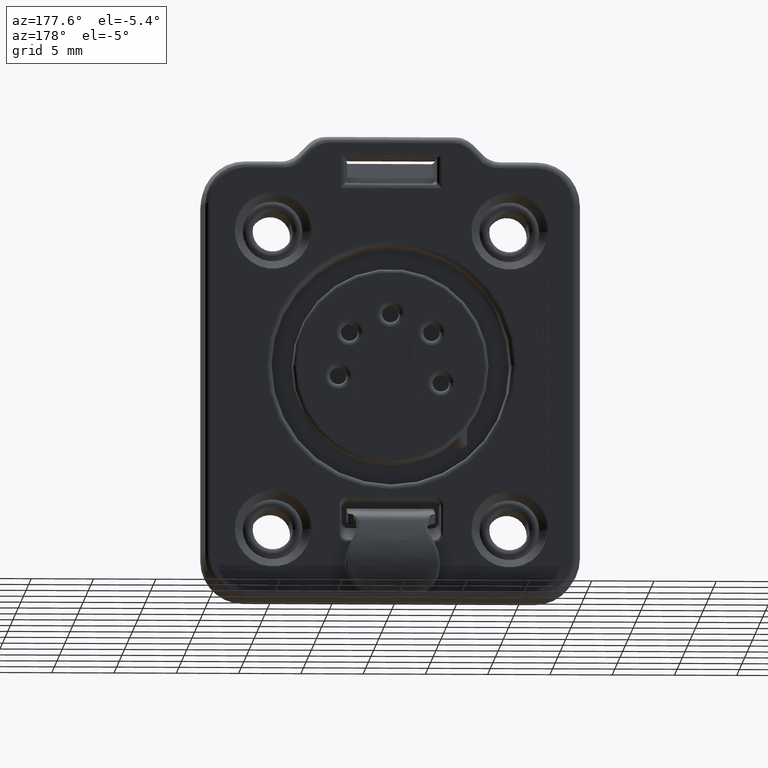
[diagram: clean part render]
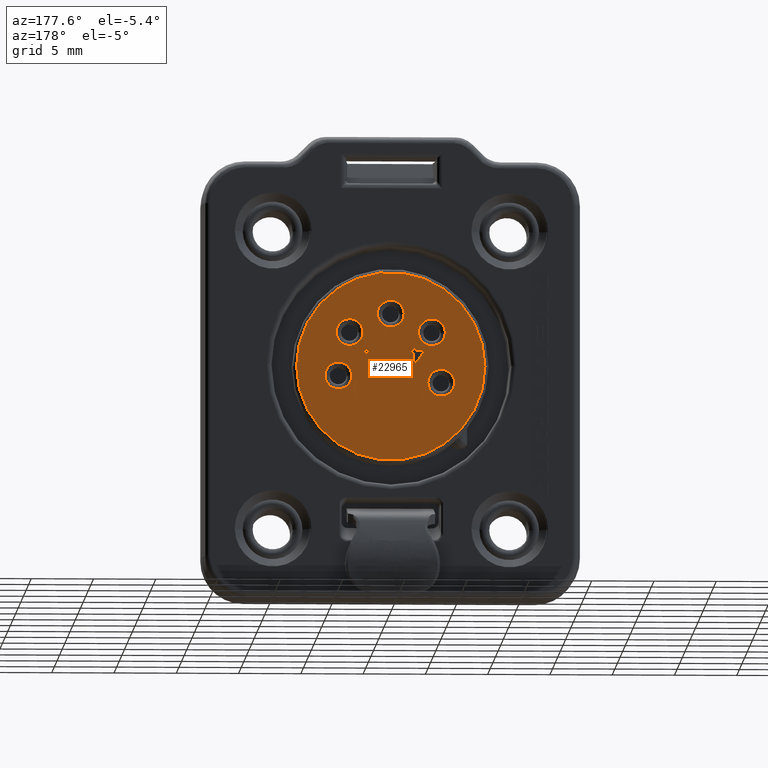
[diagram: same view with one face highlighted and labeled with its STEP entity id]
A machine part, auxiliary view. The second image highlights one B-rep face of the part: STEP entity #22965.
In plain terms, the highlighted planar face has unit normal (0, 1, 0).
Its self-contained STEP definition (entity closure, byte-faithful):
#4394=CARTESIAN_POINT('',(-4.05E0,3.E0,-1.E-1));
#4395=DIRECTION('',(0.E0,1.E0,0.E0));
#4396=DIRECTION('',(-1.E0,0.E0,0.E0));
#4397=AXIS2_PLACEMENT_3D('',#4394,#4395,#4396);
#4399=CARTESIAN_POINT('',(-4.05E0,3.E0,-1.E-1));
#4400=DIRECTION('',(0.E0,1.E0,0.E0));
#4401=DIRECTION('',(1.E0,0.E0,0.E0));
#4402=AXIS2_PLACEMENT_3D('',#4399,#4400,#4401);
#4404=CARTESIAN_POINT('',(-3.3E0,3.E0,3.95E0));
#4405=DIRECTION('',(0.E0,1.E0,0.E0));
#4406=DIRECTION('',(-1.E0,0.E0,0.E0));
#4407=AXIS2_PLACEMENT_3D('',#4404,#4405,#4406);
#4409=CARTESIAN_POINT('',(-3.3E0,3.E0,3.95E0));
#4410=DIRECTION('',(0.E0,1.E0,0.E0));
#4411=DIRECTION('',(1.E0,0.E0,0.E0));
#4412=AXIS2_PLACEMENT_3D('',#4409,#4410,#4411);
#4414=CARTESIAN_POINT('',(0.E0,3.E0,5.45E0));
#4415=DIRECTION('',(0.E0,1.E0,0.E0));
#4416=DIRECTION('',(-1.E0,0.E0,0.E0));
#4417=AXIS2_PLACEMENT_3D('',#4414,#4415,#4416);
#4419=CARTESIAN_POINT('',(0.E0,3.E0,5.45E0));
#4420=DIRECTION('',(0.E0,1.E0,0.E0));
#4421=DIRECTION('',(1.E0,0.E0,0.E0));
#4422=AXIS2_PLACEMENT_3D('',#4419,#4420,#4421);
#4424=CARTESIAN_POINT('',(3.3E0,3.E0,3.95E0));
#4425=DIRECTION('',(0.E0,1.E0,0.E0));
#4426=DIRECTION('',(-1.E0,0.E0,0.E0));
#4427=AXIS2_PLACEMENT_3D('',#4424,#4425,#4426);
#4429=CARTESIAN_POINT('',(3.3E0,3.E0,3.95E0));
#4430=DIRECTION('',(0.E0,1.E0,0.E0));
#4431=DIRECTION('',(1.E0,0.E0,0.E0));
#4432=AXIS2_PLACEMENT_3D('',#4429,#4430,#4431);
#4434=CARTESIAN_POINT('',(4.2E0,3.E0,4.5E-1));
#4435=DIRECTION('',(0.E0,1.E0,0.E0));
#4436=DIRECTION('',(-1.E0,0.E0,0.E0));
#4437=AXIS2_PLACEMENT_3D('',#4434,#4435,#4436);
#4439=CARTESIAN_POINT('',(4.2E0,3.E0,4.5E-1));
#4440=DIRECTION('',(0.E0,1.E0,0.E0));
#4441=DIRECTION('',(1.E0,0.E0,0.E0));
#4442=AXIS2_PLACEMENT_3D('',#4439,#4440,#4441);
#4444=DIRECTION('',(0.E0,0.E0,-1.E0));
#4445=VECTOR('',#4444,1.5E0);
#4446=CARTESIAN_POINT('',(2.85E0,3.E0,1.5E-1));
#4447=LINE('',#4446,#4445);
#4448=DIRECTION('',(-1.E0,0.E0,0.E0));
#4449=VECTOR('',#4448,1.5E-1);
#4450=CARTESIAN_POINT('',(2.85E0,3.E0,-1.35E0));
#4451=LINE('',#4450,#4449);
#4452=DIRECTION('',(-5.574342336867E-1,0.E0,8.302211001378E-1));
#4453=VECTOR('',#4452,2.690900395692E-1);
#4454=CARTESIAN_POINT('',(2.7E0,3.E0,-1.35E0));
#4455=LINE('',#4454,#4453);
#4456=DIRECTION('',(0.E0,0.E0,1.E0));
#4457=VECTOR('',#4456,2.553192079067E-1);
#4458=CARTESIAN_POINT('',(2.55E0,3.E0,-1.126595771313E0));
#4459=LINE('',#4458,#4457);
#4460=DIRECTION('',(5.574340799205E-1,0.E0,-8.302212033809E-1));
#4461=VECTOR('',#4460,2.690901137968E-1);
#4462=CARTESIAN_POINT('',(2.55E0,3.E0,-8.712765634060E-1));
#4463=LINE('',#4462,#4461);
#4464=DIRECTION('',(0.E0,0.E0,1.E0));
#4465=VECTOR('',#4464,1.244680881500E0);
#4466=CARTESIAN_POINT('',(2.7E0,3.E0,-1.094680881500E0));
#4467=LINE('',#4466,#4465);
#4468=DIRECTION('',(1.E0,0.E0,0.E0));
#4469=VECTOR('',#4468,1.5E-1);
#4470=CARTESIAN_POINT('',(2.7E0,3.E0,1.5E-1));
#4471=LINE('',#4470,#4469);
#4472=DIRECTION('',(0.E0,0.E0,1.E0));
#4473=VECTOR('',#4472,1.595744714141E-1);
#4474=CARTESIAN_POINT('',(1.75E0,3.E0,2.390425528586E0));
#4475=LINE('',#4474,#4473);
#4476=DIRECTION('',(1.E0,0.E0,0.E0));
#4477=VECTOR('',#4476,9.E-1);
#4478=CARTESIAN_POINT('',(1.75E0,3.E0,2.55E0));
#4479=LINE('',#4478,#4477);
#4480=DIRECTION('',(0.E0,0.E0,-1.E0));
#4481=VECTOR('',#4480,1.595744714141E-1);
#4482=CARTESIAN_POINT('',(2.65E0,3.E0,2.55E0));
#4483=LINE('',#4482,#4481);
#4484=DIRECTION('',(-1.E0,0.E0,0.E0));
#4485=VECTOR('',#4484,6.999999940395E-1);
#4486=CARTESIAN_POINT('',(2.65E0,3.E0,2.390425528586E0));
#4487=LINE('',#4486,#4485);
#4488=DIRECTION('',(6.648905181809E-1,0.E0,-7.469408268619E-1));
#4489=VECTOR('',#4488,9.400043720724E-1);
#4490=CARTESIAN_POINT('',(1.950000005960E0,3.E0,2.390425528586E0));
#4491=LINE('',#4490,#4489);
#4492=DIRECTION('',(4.629027827007E-1,0.E0,-8.864090555539E-1));
#4493=VECTOR('',#4492,1.080140921818E-1);
#4494=CARTESIAN_POINT('',(2.575E0,3.E0,1.688297885656E0));
#4495=LINE('',#4494,#4493);
#4496=DIRECTION('',(1.921826769044E-1,0.E0,-9.813591690599E-1));
#4497=VECTOR('',#4496,1.300844413286E-1);
#4498=CARTESIAN_POINT('',(2.625000023842E0,3.E0,1.592553216219E0));
#4499=LINE('',#4498,#4497);
#4500=DIRECTION('',(0.E0,0.E0,-1.E0));
#4501=VECTOR('',#4500,6.382986903191E-2);
#4502=CARTESIAN_POINT('',(2.65E0,3.E0,1.464893656969E0));
#4503=LINE('',#4502,#4501);
#4504=DIRECTION('',(-1.921826769044E-1,0.E0,-9.813591690599E-1));
#4505=VECTOR('',#4504,1.300844413286E-1);
#4506=CARTESIAN_POINT('',(2.65E0,3.E0,1.401063787937E0));
#4507=LINE('',#4506,#4505);
#4508=DIRECTION('',(-6.166622030510E-1,0.E0,-7.872278750960E-1));
#4509=VECTOR('',#4508,1.621634132738E-1);
#4510=CARTESIAN_POINT('',(2.625000023842E0,3.E0,1.273404228687E0));
#4511=LINE('',#4510,#4509);
#4512=DIRECTION('',(-8.429221804892E-1,0.E0,-5.380354984937E-1));
#4513=VECTOR('',#4512,1.186348852513E-1);
#4514=CARTESIAN_POINT('',(2.524999976158E0,3.E0,1.145744669437E0));
#4515=LINE('',#4514,#4513);
#4516=DIRECTION('',(-9.781059340346E-1,0.E0,-2.081076207309E-1));
#4517=VECTOR('',#4516,1.533576218900E-1);
#4518=CARTESIAN_POINT('',(2.425E0,3.E0,1.081914889812E0));
#4519=LINE('',#4518,#4517);
#4520=DIRECTION('',(-1.E0,0.E0,0.E0));
#4521=VECTOR('',#4520,1.000000119209E-1);
#4522=CARTESIAN_POINT('',(2.275E0,3.E0,1.05E0));
#4523=LINE('',#4522,#4521);
#4524=DIRECTION('',(-9.837740858106E-1,0.E0,1.794116721051E-1));
#4525=VECTOR('',#4524,1.778863628994E-1);
#4526=CARTESIAN_POINT('',(2.174999988079E0,3.E0,1.05E0));
#4527=LINE('',#4526,#4525);
#4528=DIRECTION('',(-8.429222241218E-1,0.E0,5.380354301360E-1));
#4529=VECTOR('',#4528,1.186349003240E-1);
#4530=CARTESIAN_POINT('',(1.999999994040E0,3.E0,1.081914889812E0));
#4531=LINE('',#4530,#4529);
#4532=DIRECTION('',(-6.166620151271E-1,0.E0,7.872280223032E-1));
#4533=VECTOR('',#4532,1.621633829502E-1);
#4534=CARTESIAN_POINT('',(1.9E0,3.E0,1.145744669437E0));
#4535=LINE('',#4534,#4533);
#4536=DIRECTION('',(-1.921828589309E-1,0.E0,9.813591334130E-1));
#4537=VECTOR('',#4536,1.300844460538E-1);
#4538=CARTESIAN_POINT('',(1.800000001490E0,3.E0,1.273404228687E0));
#4539=LINE('',#4538,#4537);
#4540=DIRECTION('',(1.E0,0.E0,0.E0));
#4541=VECTOR('',#4540,1.249999992549E-1);
#4542=CARTESIAN_POINT('',(1.775000000745E0,3.E0,1.401063787937E0));
#4543=LINE('',#4542,#4541);
#4544=DIRECTION('',(4.629026526270E-1,0.E0,-8.864091234813E-1));
#4545=VECTOR('',#4544,1.080140839045E-1);
#4546=CARTESIAN_POINT('',(1.9E0,3.E0,1.401063787937E0));
#4547=LINE('',#4546,#4545);
#4548=DIRECTION('',(7.615394278297E-1,0.E0,-6.481185847210E-1));
#4549=VECTOR('',#4548,9.848472352080E-2);
#4550=CARTESIAN_POINT('',(1.950000005960E0,3.E0,1.305319118500E0));
#4551=LINE('',#4550,#4549);
#4552=DIRECTION('',(9.689177205206E-1,0.E0,-2.473832065060E-1));
#4553=VECTOR('',#4552,1.290099286174E-1);
#4554=CARTESIAN_POINT('',(2.025000005960E0,3.E0,1.241489338875E0));
#4555=LINE('',#4554,#4553);
#4556=DIRECTION('',(1.E0,0.E0,0.E0));
#4557=VECTOR('',#4556,9.999997615814E-2);
#4558=CARTESIAN_POINT('',(2.150000011921E0,3.E0,1.209574449062E0));
#4559=LINE('',#4558,#4557);
#4560=DIRECTION('',(9.689177120382E-1,0.E0,2.473832397287E-1));
#4561=VECTOR('',#4560,1.290099112918E-1);
#4562=CARTESIAN_POINT('',(2.249999988079E0,3.E0,1.209574449062E0));
#4563=LINE('',#4562,#4561);
#4564=DIRECTION('',(7.615394278297E-1,0.E0,6.481185847210E-1));
#4565=VECTOR('',#4564,9.848472352080E-2);
#4566=CARTESIAN_POINT('',(2.374999976158E0,3.E0,1.241489338875E0));
#4567=LINE('',#4566,#4565);
#4568=DIRECTION('',(4.629027827007E-1,0.E0,8.864090555539E-1));
#4569=VECTOR('',#4568,1.080140921818E-1);
#4570=CARTESIAN_POINT('',(2.449999976158E0,3.E0,1.305319118500E0));
#4571=LINE('',#4570,#4569);
#4572=DIRECTION('',(0.E0,0.E0,1.E0));
#4573=VECTOR('',#4572,6.382986903191E-2);
#4574=CARTESIAN_POINT('',(2.5E0,3.E0,1.401063787937E0));
#4575=LINE('',#4574,#4573);
#4576=DIRECTION('',(-3.646920866794E-1,0.E0,9.311281769517E-1));
#4577=VECTOR('',#4576,1.371020257037E-1);
#4578=CARTESIAN_POINT('',(2.5E0,3.E0,1.464893656969E0));
#4579=LINE('',#4578,#4577);
#4580=DIRECTION('',(-6.594974406342E-1,0.E0,7.517068084014E-1));
#4581=VECTOR('',#4580,1.061414242161E0);
#4582=CARTESIAN_POINT('',(2.449999976158E0,3.E0,1.592553216219E0));
#4583=LINE('',#4582,#4581);
#4584=DIRECTION('',(4.629027827007E-1,0.E0,-8.864090555539E-1));
#4585=VECTOR('',#4584,1.080140921818E-1);
#4586=CARTESIAN_POINT('',(3.75E-1,3.E0,3.990425528586E0));
#4587=LINE('',#4586,#4585);
#4588=DIRECTION('',(2.526404570302E-1,0.E0,-9.675602304103E-1));
#4589=VECTOR('',#4588,9.895476145041E-2);
#4590=CARTESIAN_POINT('',(4.250000238419E-1,3.E0,3.894680859149E0));
#4591=LINE('',#4590,#4589);
#4592=DIRECTION('',(0.E0,0.E0,-1.E0));
#4593=VECTOR('',#4592,1.276595592499E-1);
#4594=CARTESIAN_POINT('',(4.5E-1,3.E0,3.798936167359E0));
#4595=LINE('',#4594,#4593);
#4596=DIRECTION('',(-1.921826120920E-1,0.E0,-9.813591817523E-1));
#4597=VECTOR('',#4596,1.300844851988E-1);
#4598=CARTESIAN_POINT('',(4.5E-1,3.E0,3.671276608109E0));
#4599=LINE('',#4598,#4597);
#4600=DIRECTION('',(-4.629027827007E-1,0.E0,-8.864090555539E-1));
#4601=VECTOR('',#4600,1.080140921818E-1);
#4602=CARTESIAN_POINT('',(4.250000238419E-1,3.E0,3.543617004156E0));
#4603=LINE('',#4602,#4601);
#4604=DIRECTION('',(-8.906053219986E-1,0.E0,-4.547770447459E-1));
#4605=VECTOR('',#4604,1.403540050281E-1);
#4606=CARTESIAN_POINT('',(3.75E-1,3.E0,3.447872334719E0));
#4607=LINE('',#4606,#4605);
#4608=DIRECTION('',(7.223082161079E-1,0.E0,-6.915712840648E-1));
#4609=VECTOR('',#4608,1.384451200383E-1);
#4610=CARTESIAN_POINT('',(2.499999761581E-1,3.E0,3.384042555094E0));
#4611=LINE('',#4610,#4609);
#4612=DIRECTION('',(4.629022624059E-1,0.E0,-8.864093272634E-1));
#4613=VECTOR('',#4612,1.080140590725E-1);
#4614=CARTESIAN_POINT('',(3.500000238419E-1,3.E0,3.288297885656E0));
#4615=LINE('',#4614,#4613);
#4616=DIRECTION('',(1.921832064360E-1,0.E0,-9.813590653599E-1));
#4617=VECTOR('',#4616,1.300844550746E-1);
#4618=CARTESIAN_POINT('',(3.999999761581E-1,3.E0,3.192553216219E0));
#4619=LINE('',#4618,#4617);
#4620=DIRECTION('',(0.E0,0.E0,-1.E0));
#4621=VECTOR('',#4620,6.382986903191E-2);
#4622=CARTESIAN_POINT('',(4.250000238419E-1,3.E0,3.064893656969E0));
#4623=LINE('',#4622,#4621);
#4624=DIRECTION('',(-1.921832064360E-1,0.E0,-9.813590653599E-1));
#4625=VECTOR('',#4624,1.300844550746E-1);
#4626=CARTESIAN_POINT('',(4.250000238419E-1,3.E0,3.001063787937E0));
#4627=LINE('',#4626,#4625);
#4628=DIRECTION('',(-6.166619297070E-1,0.E0,-7.872280892156E-1));
#4629=VECTOR('',#4628,1.621633691667E-1);
#4630=CARTESIAN_POINT('',(3.999999761581E-1,3.E0,2.873404228687E0));
#4631=LINE('',#4630,#4629);
#4632=DIRECTION('',(-8.429221804892E-1,0.E0,-5.380354984937E-1));
#4633=VECTOR('',#4632,1.186348852513E-1);
#4634=CARTESIAN_POINT('',(3.E-1,3.E0,2.745744669437E0));
#4635=LINE('',#4634,#4633);
#4636=DIRECTION('',(-9.837740890462E-1,0.E0,-1.794116543630E-1));
#4637=VECTOR('',#4636,1.778863804907E-1);
#4638=CARTESIAN_POINT('',(2.000000238419E-1,3.E0,2.681914889812E0));
#4639=LINE('',#4638,#4637);
#4640=DIRECTION('',(-1.E0,0.E0,0.E0));
#4641=VECTOR('',#4640,5.000002384186E-2);
#4642=CARTESIAN_POINT('',(2.500001192093E-2,3.E0,2.65E0));
#4643=LINE('',#4642,#4641);
#4644=DIRECTION('',(-9.837740858106E-1,0.E0,1.794116721051E-1));
#4645=VECTOR('',#4644,1.778863628994E-1);
#4646=CARTESIAN_POINT('',(-2.500001192093E-2,3.E0,2.65E0));
#4647=LINE('',#4646,#4645);
#4648=DIRECTION('',(-8.429222241218E-1,0.E0,5.380354301360E-1));
#4649=VECTOR('',#4648,1.186349003240E-1);
#4650=CARTESIAN_POINT('',(-2.000000059605E-1,3.E0,2.681914889812E0));
#4651=LINE('',#4650,#4649);
#4652=DIRECTION('',(-6.166620151271E-1,0.E0,7.872280223032E-1));
#4653=VECTOR('',#4652,1.621633829502E-1);
#4654=CARTESIAN_POINT('',(-3.E-1,3.E0,2.745744669437E0));
#4655=LINE('',#4654,#4653);
#4656=DIRECTION('',(-1.921828589309E-1,0.E0,9.813591334130E-1));
#4657=VECTOR('',#4656,1.300844460538E-1);
#4658=CARTESIAN_POINT('',(-3.999999985099E-1,3.E0,2.873404228687E0));
#4659=LINE('',#4658,#4657);
#4660=DIRECTION('',(1.E0,0.E0,0.E0));
#4661=VECTOR('',#4660,1.249999992549E-1);
#4662=CARTESIAN_POINT('',(-4.249999992549E-1,3.E0,3.001063787937E0));
#4663=LINE('',#4662,#4661);
#4664=DIRECTION('',(4.629026526270E-1,0.E0,-8.864091234813E-1));
#4665=VECTOR('',#4664,1.080140839045E-1);
#4666=CARTESIAN_POINT('',(-3.E-1,3.E0,3.001063787937E0));
#4667=LINE('',#4666,#4665);
#4668=DIRECTION('',(7.615394278297E-1,0.E0,-6.481185847210E-1));
#4669=VECTOR('',#4668,9.848472352080E-2);
#4670=CARTESIAN_POINT('',(-2.499999940395E-1,3.E0,2.905319118500E0));
#4671=LINE('',#4670,#4669);
#4672=DIRECTION('',(9.689177205206E-1,0.E0,-2.473832065060E-1));
#4673=VECTOR('',#4672,1.290099286174E-1);
#4674=CARTESIAN_POINT('',(-1.749999940395E-1,3.E0,2.841489338875E0));
#4675=LINE('',#4674,#4673);
#4676=DIRECTION('',(1.E0,0.E0,0.E0));
#4677=VECTOR('',#4676,9.999997615814E-2);
#4678=CARTESIAN_POINT('',(-4.999998807907E-2,3.E0,2.809574449062E0));
#4679=LINE('',#4678,#4677);
#4680=DIRECTION('',(9.689177120382E-1,0.E0,2.473832397287E-1));
#4681=VECTOR('',#4680,1.290099112918E-1);
#4682=CARTESIAN_POINT('',(4.999998807907E-2,3.E0,2.809574449062E0));
#4683=LINE('',#4682,#4681);
#4684=DIRECTION('',(7.615394278297E-1,0.E0,6.481185847210E-1));
#4685=VECTOR('',#4684,9.848472352080E-2);
#4686=CARTESIAN_POINT('',(1.749999761581E-1,3.E0,2.841489338875E0));
#4687=LINE('',#4686,#4685);
#4688=DIRECTION('',(4.629027827007E-1,0.E0,8.864090555539E-1));
#4689=VECTOR('',#4688,1.080140921818E-1);
#4690=CARTESIAN_POINT('',(2.499999761581E-1,3.E0,2.905319118500E0));
#4691=LINE('',#4690,#4689);
#4692=DIRECTION('',(0.E0,0.E0,1.E0));
#4693=VECTOR('',#4692,6.382986903191E-2);
#4694=CARTESIAN_POINT('',(3.E-1,3.E0,3.001063787937E0));
#4695=LINE('',#4694,#4693);
#4696=DIRECTION('',(-3.646920866794E-1,0.E0,9.311281769517E-1));
#4697=VECTOR('',#4696,1.371020257037E-1);
#4698=CARTESIAN_POINT('',(3.E-1,3.E0,3.064893656969E0));
#4699=LINE('',#4698,#4697);
#4700=DIRECTION('',(-6.166616563628E-1,0.E0,7.872283033351E-1));
#4701=VECTOR('',#4700,8.108166252982E-2);
#4702=CARTESIAN_POINT('',(2.499999761581E-1,3.E0,3.192553216219E0));
#4703=LINE('',#4702,#4701);
#4704=DIRECTION('',(-9.201546860805E-1,0.E0,3.915550455352E-1));
#4705=VECTOR('',#4704,1.630161080869E-1);
#4706=CARTESIAN_POINT('',(2.000000238419E-1,3.E0,3.256382995844E0));
#4707=LINE('',#4706,#4705);
#4708=DIRECTION('',(-1.E0,0.E0,0.E0));
#4709=VECTOR('',#4708,9.999997615814E-2);
#4710=CARTESIAN_POINT('',(4.999998807907E-2,3.E0,3.320212775469E0));
#4711=LINE('',#4710,#4709);
#4712=DIRECTION('',(0.E0,0.E0,1.E0));
#4713=VECTOR('',#4712,1.276595592499E-1);
#4714=CARTESIAN_POINT('',(-4.999998807907E-2,3.E0,3.320212775469E0));
#4715=LINE('',#4714,#4713);
#4716=DIRECTION('',(1.E0,0.E0,0.E0));
#4717=VECTOR('',#4716,9.999997615814E-2);
#4718=CARTESIAN_POINT('',(-4.999998807907E-2,3.E0,3.447872334719E0));
#4719=LINE('',#4718,#4717);
#4720=DIRECTION('',(9.781059441342E-1,0.E0,2.081075732630E-1));
#4721=VECTOR('',#4720,1.533576568697E-1);
#4722=CARTESIAN_POINT('',(4.999998807907E-2,3.E0,3.447872334719E0));
#4723=LINE('',#4722,#4721);
#4724=DIRECTION('',(7.615394278297E-1,0.E0,6.481185847210E-1));
#4725=VECTOR('',#4724,9.848472352080E-2);
#4726=CARTESIAN_POINT('',(2.000000238419E-1,3.E0,3.479787224531E0));
#4727=LINE('',#4726,#4725);
#4728=DIRECTION('',(3.646915236473E-1,0.E0,9.311283974725E-1));
#4729=VECTOR('',#4728,1.371020412436E-1);
#4730=CARTESIAN_POINT('',(2.750000238419E-1,3.E0,3.543617004156E0));
#4731=LINE('',#4730,#4729);
#4732=DIRECTION('',(0.E0,0.E0,1.E0));
#4733=VECTOR('',#4732,1.276595592499E-1);
#4734=CARTESIAN_POINT('',(3.249999761581E-1,3.E0,3.671276608109E0));
#4735=LINE('',#4734,#4733);
#4736=DIRECTION('',(-3.646916343690E-1,0.E0,9.311283541066E-1));
#4737=VECTOR('',#4736,6.855099980946E-2);
#4738=CARTESIAN_POINT('',(3.249999761581E-1,3.E0,3.798936167359E0));
#4739=LINE('',#4738,#4737);
#4740=DIRECTION('',(-6.166620692264E-1,0.E0,7.872279799254E-1));
#4741=VECTOR('',#4740,8.108172423283E-2);
#4742=CARTESIAN_POINT('',(3.E-1,3.E0,3.862765946984E0));
#4743=LINE('',#4742,#4741);
#4744=DIRECTION('',(-8.429220059588E-1,0.E0,5.380357719245E-1));
#4745=VECTOR('',#4744,5.931741248042E-2);
#4746=CARTESIAN_POINT('',(2.499999761581E-1,3.E0,3.926595748961E0));
#4747=LINE('',#4746,#4745);
#4748=DIRECTION('',(-9.689177290030E-1,0.E0,2.473831732832E-1));
#4749=VECTOR('',#4748,1.290099459430E-1);
#4750=CARTESIAN_POINT('',(2.000000238419E-1,3.E0,3.958510638773E0));
#4751=LINE('',#4750,#4749);
#4752=DIRECTION('',(-1.E0,0.E0,0.E0));
#4753=VECTOR('',#4752,1.5E-1);
#4754=CARTESIAN_POINT('',(7.5E-2,3.E0,3.990425528586E0));
#4755=LINE('',#4754,#4753);
#4756=DIRECTION('',(-9.689177205206E-1,0.E0,-2.473832065060E-1));
#4757=VECTOR('',#4756,1.290099286174E-1);
#4758=CARTESIAN_POINT('',(-7.5E-2,3.E0,3.990425528586E0));
#4759=LINE('',#4758,#4757);
#4760=DIRECTION('',(-8.429221804892E-1,0.E0,-5.380354984937E-1));
#4761=VECTOR('',#4760,5.931744262567E-2);
#4762=CARTESIAN_POINT('',(-2.000000059605E-1,3.E0,3.958510638773E0));
#4763=LINE('',#4762,#4761);
#4764=DIRECTION('',(-6.166619325544E-1,0.E0,-7.872280869852E-1));
#4765=VECTOR('',#4764,8.108171320605E-2);
#4766=CARTESIAN_POINT('',(-2.499999940395E-1,3.E0,3.926595748961E0));
#4767=LINE('',#4766,#4765);
#4768=DIRECTION('',(-3.646919736018E-1,0.E0,-9.311282212404E-1));
#4769=VECTOR('',#4768,6.855100959125E-2);
#4770=CARTESIAN_POINT('',(-3.E-1,3.E0,3.862765946984E0));
#4771=LINE('',#4770,#4769);
#4772=DIRECTION('',(-1.E0,0.E0,0.E0));
#4773=VECTOR('',#4772,1.249999970198E-1);
#4774=CARTESIAN_POINT('',(-3.250000029802E-1,3.E0,3.798936167359E0));
#4775=LINE('',#4774,#4773);
#4776=DIRECTION('',(2.526406896375E-1,0.E0,9.675601696740E-1));
#4777=VECTOR('',#4776,9.895476766206E-2);
#4778=CARTESIAN_POINT('',(-4.5E-1,3.E0,3.798936167359E0));
#4779=LINE('',#4778,#4777);
#4780=DIRECTION('',(4.629026038494E-1,0.E0,8.864091489541E-1));
#4781=VECTOR('',#4780,1.080140808005E-1);
#4782=CARTESIAN_POINT('',(-4.249999992549E-1,3.E0,3.894680859149E0));
#4783=LINE('',#4782,#4781);
#4784=DIRECTION('',(7.615393718205E-1,0.E0,6.481186505318E-1));
#4785=VECTOR('',#4784,9.848473076409E-2);
#4786=CARTESIAN_POINT('',(-3.75E-1,3.E0,3.990425528586E0));
#4787=LINE('',#4786,#4785);
#4788=DIRECTION('',(8.429221920791E-1,0.E0,5.380354803361E-1));
#4789=VECTOR('',#4788,1.186349048337E-1);
#4790=CARTESIAN_POINT('',(-3.E-1,3.E0,4.054255319387E0));
#4791=LINE('',#4790,#4789);
#4792=DIRECTION('',(9.526592087582E-1,0.E0,3.040401815027E-1));
#4793=VECTOR('',#4792,1.049693249382E-1);
#4794=CARTESIAN_POINT('',(-2.000000059605E-1,3.E0,4.118085107394E0));
#4795=LINE('',#4794,#4793);
#4796=DIRECTION('',(1.E0,0.E0,0.E0));
#4797=VECTOR('',#4796,2.000000238419E-1);
#4798=CARTESIAN_POINT('',(-1.000000119209E-1,3.E0,4.15E0));
#4799=LINE('',#4798,#4797);
#4800=DIRECTION('',(9.526592245053E-1,0.E0,-3.040401321618E-1));
#4801=VECTOR('',#4800,1.049693419731E-1);
#4802=CARTESIAN_POINT('',(1.000000119209E-1,3.E0,4.15E0));
#4803=LINE('',#4802,#4801);
#4804=DIRECTION('',(8.429221484465E-1,0.E0,-5.380355486938E-1));
#4805=VECTOR('',#4804,1.186348897611E-1);
#4806=CARTESIAN_POINT('',(2.000000238419E-1,3.E0,4.118085107394E0));
#4807=LINE('',#4806,#4805);
#4808=DIRECTION('',(7.615393718205E-1,0.E0,-6.481186505318E-1));
#4809=VECTOR('',#4808,9.848473076409E-2);
#4810=CARTESIAN_POINT('',(3.E-1,3.E0,4.054255319387E0));
#4811=LINE('',#4810,#4809);
#4812=DIRECTION('',(-5.714206587029E-1,0.E0,8.206573163066E-1));
#4813=VECTOR('',#4812,1.050014539835E0);
#4814=CARTESIAN_POINT('',(-2.E0,3.E0,1.45E0));
#4815=LINE('',#4814,#4813);
#4816=DIRECTION('',(0.E0,0.E0,1.E0));
#4817=VECTOR('',#4816,1.914893835783E-1);
#4818=CARTESIAN_POINT('',(-2.6E0,3.E0,2.311702114344E0));
#4819=LINE('',#4818,#4817);
#4820=DIRECTION('',(1.E0,0.E0,0.E0));
#4821=VECTOR('',#4820,6.E-1);
#4822=CARTESIAN_POINT('',(-2.6E0,3.E0,2.503191497922E0));
#4823=LINE('',#4822,#4821);
#4824=DIRECTION('',(0.E0,0.E0,1.E0));
#4825=VECTOR('',#4824,4.468085020781E-1);
#4826=CARTESIAN_POINT('',(-2.E0,3.E0,2.503191497922E0));
#4827=LINE('',#4826,#4825);
#4828=DIRECTION('',(1.E0,0.E0,0.E0));
#4829=VECTOR('',#4828,1.5E-1);
#4830=CARTESIAN_POINT('',(-2.E0,3.E0,2.95E0));
#4831=LINE('',#4830,#4829);
#4832=DIRECTION('',(0.E0,0.E0,-1.E0));
#4833=VECTOR('',#4832,4.468085020781E-1);
#4834=CARTESIAN_POINT('',(-1.85E0,3.E0,2.95E0));
#4835=LINE('',#4834,#4833);
#4836=DIRECTION('',(1.E0,0.E0,0.E0));
#4837=VECTOR('',#4836,2.499999761581E-1);
#4838=CARTESIAN_POINT('',(-1.85E0,3.E0,2.503191497922E0));
#4839=LINE('',#4838,#4837);
#4840=DIRECTION('',(0.E0,0.E0,-1.E0));
#4841=VECTOR('',#4840,1.914893835783E-1);
#4842=CARTESIAN_POINT('',(-1.600000023842E0,3.E0,2.503191497922E0));
#4843=LINE('',#4842,#4841);
#4844=DIRECTION('',(-1.E0,0.E0,0.E0));
#4845=VECTOR('',#4844,2.499999761581E-1);
#4846=CARTESIAN_POINT('',(-1.600000023842E0,3.E0,2.311702114344E0));
#4847=LINE('',#4846,#4845);
#4848=DIRECTION('',(0.E0,0.E0,-1.E0));
#4849=VECTOR('',#4848,8.617021143436E-1);
#4850=CARTESIAN_POINT('',(-1.85E0,3.E0,2.311702114344E0));
#4851=LINE('',#4850,#4849);
#4852=DIRECTION('',(-1.E0,0.E0,0.E0));
#4853=VECTOR('',#4852,1.5E-1);
#4854=CARTESIAN_POINT('',(-1.85E0,3.E0,1.45E0));
#4855=LINE('',#4854,#4853);
#4868=DIRECTION('',(7.223080925621E-1,0.E0,-6.915714131015E-1));
#4869=VECTOR('',#4868,1.384450942066E-1);
#4870=CARTESIAN_POINT('',(-2.475000005960E0,3.E0,-7.202127754688E-1));
#4871=LINE('',#4870,#4869);
#4872=DIRECTION('',(9.526592164677E-1,0.E0,-3.040401573462E-1));
#4873=VECTOR('',#4872,1.049693240888E-1);
#4874=CARTESIAN_POINT('',(-2.374999994040E0,3.E0,-8.159574449062E-1));
#4875=LINE('',#4874,#4873);
#4876=DIRECTION('',(1.E0,0.E0,0.E0));
#4877=VECTOR('',#4876,1.5E-1);
#4878=CARTESIAN_POINT('',(-2.275E0,3.E0,-8.478723347187E-1));
#4879=LINE('',#4878,#4877);
#4880=DIRECTION('',(9.526592007206E-1,0.E0,3.040402066872E-1));
#4881=VECTOR('',#4880,1.049693070539E-1);
#4882=CARTESIAN_POINT('',(-2.125E0,3.E0,-8.478723347187E-1));
#4883=LINE('',#4882,#4881);
#4884=DIRECTION('',(7.615394278297E-1,0.E0,6.481185847210E-1));
#4885=VECTOR('',#4884,9.848472352080E-2);
#4886=CARTESIAN_POINT('',(-2.025000023842E0,3.E0,-8.159574449062E-1));
#4887=LINE('',#4886,#4885);
#4888=DIRECTION('',(4.629027827007E-1,0.E0,8.864090555539E-1));
#4889=VECTOR('',#4888,1.080140921818E-1);
#4890=CARTESIAN_POINT('',(-1.950000023842E0,3.E0,-7.521276652813E-1));
#4891=LINE('',#4890,#4889);
#4892=DIRECTION('',(2.526404018154E-1,0.E0,9.675602448275E-1));
#4893=VECTOR('',#4892,9.895478307706E-2);
#4894=CARTESIAN_POINT('',(-1.9E0,3.E0,-6.563829958439E-1));
#4895=LINE('',#4894,#4893);
#4896=DIRECTION('',(0.E0,0.E0,1.E0));
#4897=VECTOR('',#4896,6.382977962494E-2);
#4898=CARTESIAN_POINT('',(-1.875000023842E0,3.E0,-5.606382817030E-1));
#4899=LINE('',#4898,#4897);
#4900=DIRECTION('',(-2.526405122450E-1,0.E0,9.675602159931E-1));
#4901=VECTOR('',#4900,9.895473982375E-2);
#4902=CARTESIAN_POINT('',(-1.875000023842E0,3.E0,-4.968085020781E-1));
#4903=LINE('',#4902,#4901);
#4904=DIRECTION('',(-4.629026977915E-1,0.E0,8.864090998954E-1));
#4905=VECTOR('',#4904,1.080141119946E-1);
#4906=CARTESIAN_POINT('',(-1.9E0,3.E0,-4.010638326406E-1));
#4907=LINE('',#4906,#4905);
#4908=DIRECTION('',(-7.615394278297E-1,0.E0,6.481185847210E-1));
#4909=VECTOR('',#4908,9.848472352080E-2);
#4910=CARTESIAN_POINT('',(-1.950000023842E0,3.E0,-3.053191408515E-1));
#4911=LINE('',#4910,#4909);
#4912=DIRECTION('',(-9.526592007206E-1,0.E0,3.040402066872E-1));
#4913=VECTOR('',#4912,1.049693070539E-1);
#4914=CARTESIAN_POINT('',(-2.025000023842E0,3.E0,-2.414893612266E-1));
#4915=LINE('',#4914,#4913);
#4916=DIRECTION('',(-1.E0,0.E0,0.E0));
#4917=VECTOR('',#4916,1.5E-1);
#4918=CARTESIAN_POINT('',(-2.125E0,3.E0,-2.095744714141E-1));
#4919=LINE('',#4918,#4917);
#4920=DIRECTION('',(-9.526592164677E-1,0.E0,-3.040401573462E-1));
#4921=VECTOR('',#4920,1.049693240888E-1);
#4922=CARTESIAN_POINT('',(-2.275E0,3.E0,-2.095744714141E-1));
#4923=LINE('',#4922,#4921);
#4924=DIRECTION('',(-7.615394278297E-1,0.E0,-6.481185847210E-1));
#4925=VECTOR('',#4924,9.848472352080E-2);
#4926=CARTESIAN_POINT('',(-2.374999994040E0,3.E0,-2.414893612266E-1));
#4927=LINE('',#4926,#4925);
#4928=DIRECTION('',(-3.646919182409E-1,0.E0,-9.311282429235E-1));
#4929=VECTOR('',#4928,1.371020399948E-1);
#4930=CARTESIAN_POINT('',(-2.449999994040E0,3.E0,-3.053191408515E-1));
#4931=LINE('',#4930,#4929);
#4932=DIRECTION('',(-1.E0,0.E0,0.E0));
#4933=VECTOR('',#4932,1.5E-1);
#4934=CARTESIAN_POINT('',(-2.5E0,3.E0,-4.329787224531E-1));
#4935=LINE('',#4934,#4933);
#4936=DIRECTION('',(3.646918899715E-1,0.E0,9.311282539956E-1));
#4937=VECTOR('',#4936,1.371020383645E-1);
#4938=CARTESIAN_POINT('',(-2.65E0,3.E0,-4.329787224531E-1));
#4939=LINE('',#4938,#4937);
#4940=DIRECTION('',(5.065490381095E-1,0.E0,8.622111527870E-1));
#4941=VECTOR('',#4940,1.480606809748E-1);
#4942=CARTESIAN_POINT('',(-2.599999998510E0,3.E0,-3.053191408515E-1));
#4943=LINE('',#4942,#4941);
#4944=DIRECTION('',(7.938781482981E-1,0.E0,6.080768747904E-1));
#4945=VECTOR('',#4944,1.574548906375E-1);
#4946=CARTESIAN_POINT('',(-2.525000002980E0,3.E0,-1.776595704257E-1));
#4947=LINE('',#4946,#4945);
#4948=DIRECTION('',(9.689177153295E-1,0.E0,2.473832268376E-1));
#4949=VECTOR('',#4948,1.290099293085E-1);
#4950=CARTESIAN_POINT('',(-2.400000005960E0,3.E0,-8.191489260644E-2));
#4951=LINE('',#4950,#4949);
#4952=DIRECTION('',(1.E0,0.E0,0.E0));
#4953=VECTOR('',#4952,1.5E-1);
#4954=CARTESIAN_POINT('',(-2.275E0,3.E0,-5.E-2));
#4955=LINE('',#4954,#4953);
#4956=DIRECTION('',(9.689177238119E-1,0.E0,-2.473831936149E-1));
#4957=VECTOR('',#4956,1.290099466341E-1);
#4958=CARTESIAN_POINT('',(-2.125E0,3.E0,-5.E-2));
#4959=LINE('',#4958,#4957);
#4960=DIRECTION('',(7.938780433191E-1,0.E0,-6.080770118463E-1));
#4961=VECTOR('',#4960,1.574548551484E-1);
#4962=CARTESIAN_POINT('',(-1.999999976158E0,3.E0,-8.191489260644E-2));
#4963=LINE('',#4962,#4961);
#4964=DIRECTION('',(5.065490605550E-1,0.E0,-8.622111396003E-1));
#4965=VECTOR('',#4964,1.480606832393E-1);
#4966=CARTESIAN_POINT('',(-1.875000023842E0,3.E0,-1.776595704257E-1));
#4967=LINE('',#4966,#4965);
#4968=DIRECTION('',(2.989994941383E-1,0.E0,-9.542532695805E-1));
#4969=VECTOR('',#4968,1.672244429241E-1);
#4970=CARTESIAN_POINT('',(-1.800000023842E0,3.E0,-3.053191408515E-1));
#4971=LINE('',#4970,#4969);
#4972=DIRECTION('',(0.E0,0.E0,-1.E0));
#4973=VECTOR('',#4972,1.276595592499E-1);
#4974=CARTESIAN_POINT('',(-1.75E0,3.E0,-4.648936122656E-1));
#4975=LINE('',#4974,#4973);
#4976=DIRECTION('',(-2.989994560014E-1,0.E0,-9.542532815301E-1));
#4977=VECTOR('',#4976,1.672244642533E-1);
#4978=CARTESIAN_POINT('',(-1.75E0,3.E0,-5.925531715155E-1));
#4979=LINE('',#4978,#4977);
#4980=DIRECTION('',(-5.065490935218E-1,0.E0,-8.622111202323E-1));
#4981=VECTOR('',#4980,1.480606736033E-1);
#4982=CARTESIAN_POINT('',(-1.800000023842E0,3.E0,-7.521276652813E-1));
#4983=LINE('',#4982,#4981);
#4984=DIRECTION('',(-7.938780690171E-1,0.E0,-6.080769782961E-1));
#4985=VECTOR('',#4984,1.574548500515E-1);
#4986=CARTESIAN_POINT('',(-1.875000023842E0,3.E0,-8.797872245312E-1));
#4987=LINE('',#4986,#4985);
#4988=DIRECTION('',(-9.689177290030E-1,0.E0,-2.473831732832E-1));
#4989=VECTOR('',#4988,1.290099459430E-1);
#4990=CARTESIAN_POINT('',(-1.999999976158E0,3.E0,-9.755318939686E-1));
#4991=LINE('',#4990,#4989);
#4992=DIRECTION('',(-1.E0,0.E0,0.E0));
#4993=VECTOR('',#4992,1.5E-1);
#4994=CARTESIAN_POINT('',(-2.125E0,3.E0,-1.007446783781E0));
#4995=LINE('',#4994,#4993);
#4996=DIRECTION('',(-9.689177205206E-1,0.E0,2.473832065060E-1));
#4997=VECTOR('',#4996,1.290099286174E-1);
#4998=CARTESIAN_POINT('',(-2.275E0,3.E0,-1.007446783781E0));
#4999=LINE('',#4998,#4997);
#5000=DIRECTION('',(-7.938781739960E-1,0.E0,6.080768412403E-1));
#5001=VECTOR('',#5000,1.574548855407E-1);
#5002=CARTESIAN_POINT('',(-2.400000005960E0,3.E0,-9.755318939686E-1));
#5003=LINE('',#5002,#5001);
#5004=DIRECTION('',(0.E0,0.E0,-1.E0));
#5005=VECTOR('',#5004,5.106383264065E-1);
#5006=CARTESIAN_POINT('',(-2.525000002980E0,3.E0,-8.797872245312E-1));
#5007=LINE('',#5006,#5005);
#5008=DIRECTION('',(1.E0,0.E0,0.E0));
#5009=VECTOR('',#5008,7.249999791384E-1);
#5010=CARTESIAN_POINT('',(-2.525000002980E0,3.E0,-1.390425550938E0));
#5011=LINE('',#5010,#5009);
#5012=DIRECTION('',(0.E0,0.E0,-1.E0));
#5013=VECTOR('',#5012,1.595744490623E-1);
#5014=CARTESIAN_POINT('',(-1.800000023842E0,3.E0,-1.390425550938E0));
#5015=LINE('',#5014,#5013);
#5016=DIRECTION('',(-1.E0,0.E0,0.E0));
#5017=VECTOR('',#5016,8.499999761581E-1);
#5018=CARTESIAN_POINT('',(-1.800000023842E0,3.E0,-1.55E0));
#5019=LINE('',#5018,#5017);
#5020=DIRECTION('',(0.E0,0.E0,1.E0));
#5021=VECTOR('',#5020,8.297872245312E-1);
#5022=CARTESIAN_POINT('',(-2.65E0,3.E0,-1.55E0));
#5023=LINE('',#5022,#5021);
#5024=DIRECTION('',(1.E0,0.E0,0.E0));
#5025=VECTOR('',#5024,1.749999940395E-1);
#5026=CARTESIAN_POINT('',(-2.65E0,3.E0,-7.202127754688E-1));
#5027=LINE('',#5026,#5025);
#5028=CARTESIAN_POINT('',(0.E0,3.E0,1.2E0));
#5029=DIRECTION('',(0.E0,-1.E0,0.E0));
#5030=DIRECTION('',(1.E0,0.E0,0.E0));
#5031=AXIS2_PLACEMENT_3D('',#5028,#5029,#5030);
#5033=CARTESIAN_POINT('',(0.E0,3.E0,1.2E0));
#5034=DIRECTION('',(0.E0,-1.E0,0.E0));
#5035=DIRECTION('',(-1.E0,0.E0,0.E0));
#5036=AXIS2_PLACEMENT_3D('',#5033,#5034,#5035);
#14987=CARTESIAN_POINT('',(-5.125E0,3.E0,-1.E-1));
#14988=CARTESIAN_POINT('',(-2.975E0,3.E0,-1.E-1));
#14989=VERTEX_POINT('',#14987);
#14990=VERTEX_POINT('',#14988);
#15003=CARTESIAN_POINT('',(-4.375E0,3.E0,3.95E0));
#15004=CARTESIAN_POINT('',(-2.225E0,3.E0,3.95E0));
#15005=VERTEX_POINT('',#15003);
#15006=VERTEX_POINT('',#15004);
#15019=CARTESIAN_POINT('',(-1.075E0,3.E0,5.45E0));
#15020=CARTESIAN_POINT('',(1.075E0,3.E0,5.45E0));
#15021=VERTEX_POINT('',#15019);
#15022=VERTEX_POINT('',#15020);
#15035=CARTESIAN_POINT('',(2.225E0,3.E0,3.95E0));
#15036=CARTESIAN_POINT('',(4.375E0,3.E0,3.95E0));
#15037=VERTEX_POINT('',#15035);
#15038=VERTEX_POINT('',#15036);
#15051=CARTESIAN_POINT('',(3.125E0,3.E0,4.5E-1));
#15052=CARTESIAN_POINT('',(5.275E0,3.E0,4.5E-1));
#15053=VERTEX_POINT('',#15051);
#15054=VERTEX_POINT('',#15052);
#15347=CARTESIAN_POINT('',(2.85E0,3.E0,1.5E-1));
#15348=CARTESIAN_POINT('',(2.85E0,3.E0,-1.35E0));
#15349=VERTEX_POINT('',#15347);
#15350=VERTEX_POINT('',#15348);
#15351=CARTESIAN_POINT('',(2.7E0,3.E0,-1.35E0));
#15352=VERTEX_POINT('',#15351);
#15353=CARTESIAN_POINT('',(2.55E0,3.E0,-1.126595771313E0));
#15354=VERTEX_POINT('',#15353);
#15355=CARTESIAN_POINT('',(2.55E0,3.E0,-8.712765634060E-1));
#15356=VERTEX_POINT('',#15355);
#15357=CARTESIAN_POINT('',(2.7E0,3.E0,-1.094680881500E0));
#15358=VERTEX_POINT('',#15357);
#15359=CARTESIAN_POINT('',(2.7E0,3.E0,1.5E-1));
#15360=VERTEX_POINT('',#15359);
#15361=CARTESIAN_POINT('',(1.75E0,3.E0,2.390425528586E0));
#15362=CARTESIAN_POINT('',(1.75E0,3.E0,2.55E0));
#15363=VERTEX_POINT('',#15361);
#15364=VERTEX_POINT('',#15362);
#15365=CARTESIAN_POINT('',(2.65E0,3.E0,2.55E0));
#15366=VERTEX_POINT('',#15365);
#15367=CARTESIAN_POINT('',(2.65E0,3.E0,2.390425528586E0));
#15368=VERTEX_POINT('',#15367);
#15369=CARTESIAN_POINT('',(1.950000005960E0,3.E0,2.390425528586E0));
#15370=VERTEX_POINT('',#15369);
#15371=CARTESIAN_POINT('',(2.575E0,3.E0,1.688297885656E0));
#15372=VERTEX_POINT('',#15371);
#15373=CARTESIAN_POINT('',(2.625000023842E0,3.E0,1.592553216219E0));
#15374=VERTEX_POINT('',#15373);
#15375=CARTESIAN_POINT('',(2.65E0,3.E0,1.464893656969E0));
#15376=VERTEX_POINT('',#15375);
#15377=CARTESIAN_POINT('',(2.65E0,3.E0,1.401063787937E0));
#15378=VERTEX_POINT('',#15377);
#15379=CARTESIAN_POINT('',(2.625000023842E0,3.E0,1.273404228687E0));
#15380=VERTEX_POINT('',#15379);
#15381=CARTESIAN_POINT('',(2.524999976158E0,3.E0,1.145744669437E0));
#15382=VERTEX_POINT('',#15381);
#15383=CARTESIAN_POINT('',(2.425E0,3.E0,1.081914889812E0));
#15384=VERTEX_POINT('',#15383);
#15385=CARTESIAN_POINT('',(2.275E0,3.E0,1.05E0));
#15386=VERTEX_POINT('',#15385);
#15387=CARTESIAN_POINT('',(2.174999988079E0,3.E0,1.05E0));
#15388=VERTEX_POINT('',#15387);
#15389=CARTESIAN_POINT('',(1.999999994040E0,3.E0,1.081914889812E0));
#15390=VERTEX_POINT('',#15389);
#15391=CARTESIAN_POINT('',(1.9E0,3.E0,1.145744669437E0));
#15392=VERTEX_POINT('',#15391);
#15393=CARTESIAN_POINT('',(1.800000001490E0,3.E0,1.273404228687E0));
#15394=VERTEX_POINT('',#15393);
#15395=CARTESIAN_POINT('',(1.775000000745E0,3.E0,1.401063787937E0));
#15396=VERTEX_POINT('',#15395);
#15397=CARTESIAN_POINT('',(1.9E0,3.E0,1.401063787937E0));
#15398=VERTEX_POINT('',#15397);
#15399=CARTESIAN_POINT('',(1.950000005960E0,3.E0,1.305319118500E0));
#15400=VERTEX_POINT('',#15399);
#15401=CARTESIAN_POINT('',(2.025000005960E0,3.E0,1.241489338875E0));
#15402=VERTEX_POINT('',#15401);
#15403=CARTESIAN_POINT('',(2.150000011921E0,3.E0,1.209574449062E0));
#15404=VERTEX_POINT('',#15403);
#15405=CARTESIAN_POINT('',(2.249999988079E0,3.E0,1.209574449062E0));
#15406=VERTEX_POINT('',#15405);
#15407=CARTESIAN_POINT('',(2.374999976158E0,3.E0,1.241489338875E0));
#15408=VERTEX_POINT('',#15407);
#15409=CARTESIAN_POINT('',(2.449999976158E0,3.E0,1.305319118500E0));
#15410=VERTEX_POINT('',#15409);
#15411=CARTESIAN_POINT('',(2.5E0,3.E0,1.401063787937E0));
#15412=VERTEX_POINT('',#15411);
#15413=CARTESIAN_POINT('',(2.5E0,3.E0,1.464893656969E0));
#15414=VERTEX_POINT('',#15413);
#15415=CARTESIAN_POINT('',(2.449999976158E0,3.E0,1.592553216219E0));
#15416=VERTEX_POINT('',#15415);
#15417=CARTESIAN_POINT('',(3.75E-1,3.E0,3.990425528586E0));
#15418=CARTESIAN_POINT('',(4.250000238419E-1,3.E0,3.894680859149E0));
#15419=VERTEX_POINT('',#15417);
#15420=VERTEX_POINT('',#15418);
#15421=CARTESIAN_POINT('',(4.5E-1,3.E0,3.798936167359E0));
#15422=VERTEX_POINT('',#15421);
#15423=CARTESIAN_POINT('',(4.5E-1,3.E0,3.671276608109E0));
#15424=VERTEX_POINT('',#15423);
#15425=CARTESIAN_POINT('',(4.250000238419E-1,3.E0,3.543617004156E0));
#15426=VERTEX_POINT('',#15425);
#15427=CARTESIAN_POINT('',(3.75E-1,3.E0,3.447872334719E0));
#15428=VERTEX_POINT('',#15427);
#15429=CARTESIAN_POINT('',(2.499999761581E-1,3.E0,3.384042555094E0));
#15430=VERTEX_POINT('',#15429);
#15431=CARTESIAN_POINT('',(3.500000238419E-1,3.E0,3.288297885656E0));
#15432=VERTEX_POINT('',#15431);
#15433=CARTESIAN_POINT('',(3.999999761581E-1,3.E0,3.192553216219E0));
#15434=VERTEX_POINT('',#15433);
#15435=CARTESIAN_POINT('',(4.250000238419E-1,3.E0,3.064893656969E0));
#15436=VERTEX_POINT('',#15435);
#15437=CARTESIAN_POINT('',(4.250000238419E-1,3.E0,3.001063787937E0));
#15438=VERTEX_POINT('',#15437);
#15439=CARTESIAN_POINT('',(3.999999761581E-1,3.E0,2.873404228687E0));
#15440=VERTEX_POINT('',#15439);
#15441=CARTESIAN_POINT('',(3.E-1,3.E0,2.745744669437E0));
#15442=VERTEX_POINT('',#15441);
#15443=CARTESIAN_POINT('',(2.000000238419E-1,3.E0,2.681914889812E0));
#15444=VERTEX_POINT('',#15443);
#15445=CARTESIAN_POINT('',(2.500001192093E-2,3.E0,2.65E0));
#15446=VERTEX_POINT('',#15445);
#15447=CARTESIAN_POINT('',(-2.500001192093E-2,3.E0,2.65E0));
#15448=VERTEX_POINT('',#15447);
#15449=CARTESIAN_POINT('',(-2.000000059605E-1,3.E0,2.681914889812E0));
#15450=VERTEX_POINT('',#15449);
#15451=CARTESIAN_POINT('',(-3.E-1,3.E0,2.745744669437E0));
#15452=VERTEX_POINT('',#15451);
#15453=CARTESIAN_POINT('',(-3.999999985099E-1,3.E0,2.873404228687E0));
#15454=VERTEX_POINT('',#15453);
#15455=CARTESIAN_POINT('',(-4.249999992549E-1,3.E0,3.001063787937E0));
#15456=VERTEX_POINT('',#15455);
#15457=CARTESIAN_POINT('',(-3.E-1,3.E0,3.001063787937E0));
#15458=VERTEX_POINT('',#15457);
#15459=CARTESIAN_POINT('',(-2.499999940395E-1,3.E0,2.905319118500E0));
#15460=VERTEX_POINT('',#15459);
#15461=CARTESIAN_POINT('',(-1.749999940395E-1,3.E0,2.841489338875E0));
#15462=VERTEX_POINT('',#15461);
#15463=CARTESIAN_POINT('',(-4.999998807907E-2,3.E0,2.809574449062E0));
#15464=VERTEX_POINT('',#15463);
#15465=CARTESIAN_POINT('',(4.999998807907E-2,3.E0,2.809574449062E0));
#15466=VERTEX_POINT('',#15465);
#15467=CARTESIAN_POINT('',(1.749999761581E-1,3.E0,2.841489338875E0));
#15468=VERTEX_POINT('',#15467);
#15469=CARTESIAN_POINT('',(2.499999761581E-1,3.E0,2.905319118500E0));
#15470=VERTEX_POINT('',#15469);
#15471=CARTESIAN_POINT('',(3.E-1,3.E0,3.001063787937E0));
#15472=VERTEX_POINT('',#15471);
#15473=CARTESIAN_POINT('',(3.E-1,3.E0,3.064893656969E0));
#15474=VERTEX_POINT('',#15473);
#15475=CARTESIAN_POINT('',(2.499999761581E-1,3.E0,3.192553216219E0));
#15476=VERTEX_POINT('',#15475);
#15477=CARTESIAN_POINT('',(2.000000238419E-1,3.E0,3.256382995844E0));
#15478=VERTEX_POINT('',#15477);
#15479=CARTESIAN_POINT('',(4.999998807907E-2,3.E0,3.320212775469E0));
#15480=VERTEX_POINT('',#15479);
#15481=CARTESIAN_POINT('',(-4.999998807907E-2,3.E0,3.320212775469E0));
#15482=VERTEX_POINT('',#15481);
#15483=CARTESIAN_POINT('',(-4.999998807907E-2,3.E0,3.447872334719E0));
#15484=VERTEX_POINT('',#15483);
#15485=CARTESIAN_POINT('',(4.999998807907E-2,3.E0,3.447872334719E0));
#15486=VERTEX_POINT('',#15485);
#15487=CARTESIAN_POINT('',(2.000000238419E-1,3.E0,3.479787224531E0));
#15488=VERTEX_POINT('',#15487);
#15489=CARTESIAN_POINT('',(2.750000238419E-1,3.E0,3.543617004156E0));
#15490=VERTEX_POINT('',#15489);
#15491=CARTESIAN_POINT('',(3.249999761581E-1,3.E0,3.671276608109E0));
#15492=VERTEX_POINT('',#15491);
#15493=CARTESIAN_POINT('',(3.249999761581E-1,3.E0,3.798936167359E0));
#15494=VERTEX_POINT('',#15493);
#15495=CARTESIAN_POINT('',(3.E-1,3.E0,3.862765946984E0));
#15496=VERTEX_POINT('',#15495);
#15497=CARTESIAN_POINT('',(2.499999761581E-1,3.E0,3.926595748961E0));
#15498=VERTEX_POINT('',#15497);
#15499=CARTESIAN_POINT('',(2.000000238419E-1,3.E0,3.958510638773E0));
#15500=VERTEX_POINT('',#15499);
#15501=CARTESIAN_POINT('',(7.5E-2,3.E0,3.990425528586E0));
#15502=VERTEX_POINT('',#15501);
#15503=CARTESIAN_POINT('',(-7.5E-2,3.E0,3.990425528586E0));
#15504=VERTEX_POINT('',#15503);
#15505=CARTESIAN_POINT('',(-2.000000059605E-1,3.E0,3.958510638773E0));
#15506=VERTEX_POINT('',#15505);
#15507=CARTESIAN_POINT('',(-2.499999940395E-1,3.E0,3.926595748961E0));
#15508=VERTEX_POINT('',#15507);
#15509=CARTESIAN_POINT('',(-3.E-1,3.E0,3.862765946984E0));
#15510=VERTEX_POINT('',#15509);
#15511=CARTESIAN_POINT('',(-3.250000029802E-1,3.E0,3.798936167359E0));
#15512=VERTEX_POINT('',#15511);
#15513=CARTESIAN_POINT('',(-4.5E-1,3.E0,3.798936167359E0));
#15514=VERTEX_POINT('',#15513);
#15515=CARTESIAN_POINT('',(-4.249999992549E-1,3.E0,3.894680859149E0));
#15516=VERTEX_POINT('',#15515);
#15517=CARTESIAN_POINT('',(-3.75E-1,3.E0,3.990425528586E0));
#15518=VERTEX_POINT('',#15517);
#15519=CARTESIAN_POINT('',(-3.E-1,3.E0,4.054255319387E0));
#15520=VERTEX_POINT('',#15519);
#15521=CARTESIAN_POINT('',(-2.000000059605E-1,3.E0,4.118085107394E0));
#15522=VERTEX_POINT('',#15521);
#15523=CARTESIAN_POINT('',(-1.000000119209E-1,3.E0,4.15E0));
#15524=VERTEX_POINT('',#15523);
#15525=CARTESIAN_POINT('',(1.000000119209E-1,3.E0,4.15E0));
#15526=VERTEX_POINT('',#15525);
#15527=CARTESIAN_POINT('',(2.000000238419E-1,3.E0,4.118085107394E0));
#15528=VERTEX_POINT('',#15527);
#15529=CARTESIAN_POINT('',(3.E-1,3.E0,4.054255319387E0));
#15530=VERTEX_POINT('',#15529);
#15531=CARTESIAN_POINT('',(-2.E0,3.E0,1.45E0));
#15532=CARTESIAN_POINT('',(-2.6E0,3.E0,2.311702114344E0));
#15533=VERTEX_POINT('',#15531);
#15534=VERTEX_POINT('',#15532);
#15535=CARTESIAN_POINT('',(-2.6E0,3.E0,2.503191497922E0));
#15536=VERTEX_POINT('',#15535);
#15537=CARTESIAN_POINT('',(-2.E0,3.E0,2.503191497922E0));
#15538=VERTEX_POINT('',#15537);
#15539=CARTESIAN_POINT('',(-2.E0,3.E0,2.95E0));
#15540=VERTEX_POINT('',#15539);
#15541=CARTESIAN_POINT('',(-1.85E0,3.E0,2.95E0));
#15542=VERTEX_POINT('',#15541);
#15543=CARTESIAN_POINT('',(-1.85E0,3.E0,2.503191497922E0));
#15544=VERTEX_POINT('',#15543);
#15545=CARTESIAN_POINT('',(-1.600000023842E0,3.E0,2.503191497922E0));
#15546=VERTEX_POINT('',#15545);
#15547=CARTESIAN_POINT('',(-1.600000023842E0,3.E0,2.311702114344E0));
#15548=VERTEX_POINT('',#15547);
#15549=CARTESIAN_POINT('',(-1.85E0,3.E0,2.311702114344E0));
#15550=VERTEX_POINT('',#15549);
#15551=CARTESIAN_POINT('',(-1.85E0,3.E0,1.45E0));
#15552=VERTEX_POINT('',#15551);
#15559=CARTESIAN_POINT('',(-2.475000005960E0,3.E0,-7.202127754688E-1));
#15560=CARTESIAN_POINT('',(-2.374999994040E0,3.E0,-8.159574449062E-1));
#15561=VERTEX_POINT('',#15559);
#15562=VERTEX_POINT('',#15560);
#15563=CARTESIAN_POINT('',(-2.275E0,3.E0,-8.478723347187E-1));
#15564=VERTEX_POINT('',#15563);
#15565=CARTESIAN_POINT('',(-2.125E0,3.E0,-8.478723347187E-1));
#15566=VERTEX_POINT('',#15565);
#15567=CARTESIAN_POINT('',(-2.025000023842E0,3.E0,-8.159574449062E-1));
#15568=VERTEX_POINT('',#15567);
#15569=CARTESIAN_POINT('',(-1.950000023842E0,3.E0,-7.521276652813E-1));
#15570=VERTEX_POINT('',#15569);
#15571=CARTESIAN_POINT('',(-1.9E0,3.E0,-6.563829958439E-1));
#15572=VERTEX_POINT('',#15571);
#15573=CARTESIAN_POINT('',(-1.875000023842E0,3.E0,-5.606382817030E-1));
#15574=VERTEX_POINT('',#15573);
#15575=CARTESIAN_POINT('',(-1.875000023842E0,3.E0,-4.968085020781E-1));
#15576=VERTEX_POINT('',#15575);
#15577=CARTESIAN_POINT('',(-1.9E0,3.E0,-4.010638326406E-1));
#15578=VERTEX_POINT('',#15577);
#15579=CARTESIAN_POINT('',(-1.950000023842E0,3.E0,-3.053191408515E-1));
#15580=VERTEX_POINT('',#15579);
#15581=CARTESIAN_POINT('',(-2.025000023842E0,3.E0,-2.414893612266E-1));
#15582=VERTEX_POINT('',#15581);
#15583=CARTESIAN_POINT('',(-2.125E0,3.E0,-2.095744714141E-1));
#15584=VERTEX_POINT('',#15583);
#15585=CARTESIAN_POINT('',(-2.275E0,3.E0,-2.095744714141E-1));
#15586=VERTEX_POINT('',#15585);
#15587=CARTESIAN_POINT('',(-2.374999994040E0,3.E0,-2.414893612266E-1));
#15588=VERTEX_POINT('',#15587);
#15589=CARTESIAN_POINT('',(-2.449999994040E0,3.E0,-3.053191408515E-1));
#15590=VERTEX_POINT('',#15589);
#15591=CARTESIAN_POINT('',(-2.5E0,3.E0,-4.329787224531E-1));
#15592=VERTEX_POINT('',#15591);
#15593=CARTESIAN_POINT('',(-2.65E0,3.E0,-4.329787224531E-1));
#15594=VERTEX_POINT('',#15593);
#15595=CARTESIAN_POINT('',(-2.599999998510E0,3.E0,-3.053191408515E-1));
#15596=VERTEX_POINT('',#15595);
#15597=CARTESIAN_POINT('',(-2.525000002980E0,3.E0,-1.776595704257E-1));
#15598=VERTEX_POINT('',#15597);
#15599=CARTESIAN_POINT('',(-2.400000005960E0,3.E0,-8.191489260644E-2));
#15600=VERTEX_POINT('',#15599);
#15601=CARTESIAN_POINT('',(-2.275E0,3.E0,-5.E-2));
#15602=VERTEX_POINT('',#15601);
#15603=CARTESIAN_POINT('',(-2.125E0,3.E0,-5.E-2));
#15604=VERTEX_POINT('',#15603);
#15605=CARTESIAN_POINT('',(-1.999999976158E0,3.E0,-8.191489260644E-2));
#15606=VERTEX_POINT('',#15605);
#15607=CARTESIAN_POINT('',(-1.875000023842E0,3.E0,-1.776595704257E-1));
#15608=VERTEX_POINT('',#15607);
#15609=CARTESIAN_POINT('',(-1.800000023842E0,3.E0,-3.053191408515E-1));
#15610=VERTEX_POINT('',#15609);
#15611=CARTESIAN_POINT('',(-1.75E0,3.E0,-4.648936122656E-1));
#15612=VERTEX_POINT('',#15611);
#15613=CARTESIAN_POINT('',(-1.75E0,3.E0,-5.925531715155E-1));
#15614=VERTEX_POINT('',#15613);
#15615=CARTESIAN_POINT('',(-1.800000023842E0,3.E0,-7.521276652813E-1));
#15616=VERTEX_POINT('',#15615);
#15617=CARTESIAN_POINT('',(-1.875000023842E0,3.E0,-8.797872245312E-1));
#15618=VERTEX_POINT('',#15617);
#15619=CARTESIAN_POINT('',(-1.999999976158E0,3.E0,-9.755318939686E-1));
#15620=VERTEX_POINT('',#15619);
#15621=CARTESIAN_POINT('',(-2.125E0,3.E0,-1.007446783781E0));
#15622=VERTEX_POINT('',#15621);
#15623=CARTESIAN_POINT('',(-2.275E0,3.E0,-1.007446783781E0));
#15624=VERTEX_POINT('',#15623);
#15625=CARTESIAN_POINT('',(-2.400000005960E0,3.E0,-9.755318939686E-1));
#15626=VERTEX_POINT('',#15625);
#15627=CARTESIAN_POINT('',(-2.525000002980E0,3.E0,-8.797872245312E-1));
#15628=VERTEX_POINT('',#15627);
#15629=CARTESIAN_POINT('',(-2.525000002980E0,3.E0,-1.390425550938E0));
#15630=VERTEX_POINT('',#15629);
#15631=CARTESIAN_POINT('',(-1.800000023842E0,3.E0,-1.390425550938E0));
#15632=VERTEX_POINT('',#15631);
#15633=CARTESIAN_POINT('',(-1.800000023842E0,3.E0,-1.55E0));
#15634=VERTEX_POINT('',#15633);
#15635=CARTESIAN_POINT('',(-2.65E0,3.E0,-1.55E0));
#15636=VERTEX_POINT('',#15635);
#15637=CARTESIAN_POINT('',(-2.65E0,3.E0,-7.202127754688E-1));
#15638=VERTEX_POINT('',#15637);
#16398=CARTESIAN_POINT('',(7.561961173554E0,3.E0,1.2E0));
#16399=CARTESIAN_POINT('',(-7.561961173554E0,3.E0,1.2E0));
#16400=VERTEX_POINT('',#16398);
#16401=VERTEX_POINT('',#16399);
#22629=CARTESIAN_POINT('',(0.E0,3.E0,1.2E0));
#22630=DIRECTION('',(0.E0,1.E0,0.E0));
#22631=DIRECTION('',(-1.E0,0.E0,0.E0));
#22632=AXIS2_PLACEMENT_3D('',#22629,#22630,#22631);
#22633=PLANE('',#22632);
#22635=ORIENTED_EDGE('',*,*,#22634,.T.);
#22637=ORIENTED_EDGE('',*,*,#22636,.T.);
#22638=EDGE_LOOP('',(#22635,#22637));
#22639=FACE_OUTER_BOUND('',#22638,.F.);
#22641=ORIENTED_EDGE('',*,*,#22640,.T.);
#22642=ORIENTED_EDGE('',*,*,#22605,.T.);
#22643=EDGE_LOOP('',(#22641,#22642));
#22644=FACE_BOUND('',#22643,.F.);
#22646=ORIENTED_EDGE('',*,*,#22645,.T.);
#22648=ORIENTED_EDGE('',*,*,#22647,.T.);
#22649=EDGE_LOOP('',(#22646,#22648));
#22650=FACE_BOUND('',#22649,.F.);
#22652=ORIENTED_EDGE('',*,*,#22651,.T.);
#22654=ORIENTED_EDGE('',*,*,#22653,.T.);
#22655=EDGE_LOOP('',(#22652,#22654));
#22656=FACE_BOUND('',#22655,.F.);
#22658=ORIENTED_EDGE('',*,*,#22657,.T.);
#22660=ORIENTED_EDGE('',*,*,#22659,.T.);
#22661=EDGE_LOOP('',(#22658,#22660));
#22662=FACE_BOUND('',#22661,.F.);
#22664=ORIENTED_EDGE('',*,*,#22663,.T.);
#22666=ORIENTED_EDGE('',*,*,#22665,.T.);
#22667=EDGE_LOOP('',(#22664,#22666));
#22668=FACE_BOUND('',#22667,.F.);
#22670=ORIENTED_EDGE('',*,*,#22669,.T.);
#22672=ORIENTED_EDGE('',*,*,#22671,.T.);
#22674=ORIENTED_EDGE('',*,*,#22673,.T.);
#22676=ORIENTED_EDGE('',*,*,#22675,.T.);
#22678=ORIENTED_EDGE('',*,*,#22677,.T.);
#22680=ORIENTED_EDGE('',*,*,#22679,.T.);
#22682=ORIENTED_EDGE('',*,*,#22681,.T.);
#22683=EDGE_LOOP('',(#22670,#22672,#22674,#22676,#22678,#22680,#22682));
#22684=FACE_BOUND('',#22683,.F.);
#22686=ORIENTED_EDGE('',*,*,#22685,.T.);
#22688=ORIENTED_EDGE('',*,*,#22687,.T.);
#22690=ORIENTED_EDGE('',*,*,#22689,.T.);
#22692=ORIENTED_EDGE('',*,*,#22691,.T.);
#22694=ORIENTED_EDGE('',*,*,#22693,.T.);
#22696=ORIENTED_EDGE('',*,*,#22695,.T.);
#22698=ORIENTED_EDGE('',*,*,#22697,.T.);
#22700=ORIENTED_EDGE('',*,*,#22699,.T.);
#22702=ORIENTED_EDGE('',*,*,#22701,.T.);
#22704=ORIENTED_EDGE('',*,*,#22703,.T.);
#22706=ORIENTED_EDGE('',*,*,#22705,.T.);
#22708=ORIENTED_EDGE('',*,*,#22707,.T.);
#22710=ORIENTED_EDGE('',*,*,#22709,.T.);
#22712=ORIENTED_EDGE('',*,*,#22711,.T.);
#22714=ORIENTED_EDGE('',*,*,#22713,.T.);
#22716=ORIENTED_EDGE('',*,*,#22715,.T.);
#22718=ORIENTED_EDGE('',*,*,#22717,.T.);
#22720=ORIENTED_EDGE('',*,*,#22719,.T.);
#22722=ORIENTED_EDGE('',*,*,#22721,.T.);
#22724=ORIENTED_EDGE('',*,*,#22723,.T.);
#22726=ORIENTED_EDGE('',*,*,#22725,.T.);
#22728=ORIENTED_EDGE('',*,*,#22727,.T.);
#22730=ORIENTED_EDGE('',*,*,#22729,.T.);
#22732=ORIENTED_EDGE('',*,*,#22731,.T.);
#22734=ORIENTED_EDGE('',*,*,#22733,.T.);
#22736=ORIENTED_EDGE('',*,*,#22735,.T.);
#22738=ORIENTED_EDGE('',*,*,#22737,.T.);
#22740=ORIENTED_EDGE('',*,*,#22739,.T.);
#22741=EDGE_LOOP('',(#22686,#22688,#22690,#22692,#22694,#22696,#22698,#22700,
#22702,#22704,#22706,#22708,#22710,#22712,#22714,#22716,#22718,#22720,#22722,
#22724,#22726,#22728,#22730,#22732,#22734,#22736,#22738,#22740));
#22742=FACE_BOUND('',#22741,.F.);
#22744=ORIENTED_EDGE('',*,*,#22743,.T.);
#22746=ORIENTED_EDGE('',*,*,#22745,.T.);
#22748=ORIENTED_EDGE('',*,*,#22747,.T.);
#22750=ORIENTED_EDGE('',*,*,#22749,.T.);
#22752=ORIENTED_EDGE('',*,*,#22751,.T.);
#22754=ORIENTED_EDGE('',*,*,#22753,.T.);
#22756=ORIENTED_EDGE('',*,*,#22755,.T.);
#22758=ORIENTED_EDGE('',*,*,#22757,.T.);
#22760=ORIENTED_EDGE('',*,*,#22759,.T.);
#22762=ORIENTED_EDGE('',*,*,#22761,.T.);
#22764=ORIENTED_EDGE('',*,*,#22763,.T.);
#22766=ORIENTED_EDGE('',*,*,#22765,.T.);
#22768=ORIENTED_EDGE('',*,*,#22767,.T.);
#22770=ORIENTED_EDGE('',*,*,#22769,.T.);
#22772=ORIENTED_EDGE('',*,*,#22771,.T.);
#22774=ORIENTED_EDGE('',*,*,#22773,.T.);
#22776=ORIENTED_EDGE('',*,*,#22775,.T.);
#22778=ORIENTED_EDGE('',*,*,#22777,.T.);
#22780=ORIENTED_EDGE('',*,*,#22779,.T.);
#22782=ORIENTED_EDGE('',*,*,#22781,.T.);
#22784=ORIENTED_EDGE('',*,*,#22783,.T.);
#22786=ORIENTED_EDGE('',*,*,#22785,.T.);
#22788=ORIENTED_EDGE('',*,*,#22787,.T.);
#22790=ORIENTED_EDGE('',*,*,#22789,.T.);
#22792=ORIENTED_EDGE('',*,*,#22791,.T.);
#22794=ORIENTED_EDGE('',*,*,#22793,.T.);
#22796=ORIENTED_EDGE('',*,*,#22795,.T.);
#22798=ORIENTED_EDGE('',*,*,#22797,.T.);
#22800=ORIENTED_EDGE('',*,*,#22799,.T.);
#22802=ORIENTED_EDGE('',*,*,#22801,.T.);
#22804=ORIENTED_EDGE('',*,*,#22803,.T.);
#22806=ORIENTED_EDGE('',*,*,#22805,.T.);
#22808=ORIENTED_EDGE('',*,*,#22807,.T.);
#22810=ORIENTED_EDGE('',*,*,#22809,.T.);
#22812=ORIENTED_EDGE('',*,*,#22811,.T.);
#22814=ORIENTED_EDGE('',*,*,#22813,.T.);
#22816=ORIENTED_EDGE('',*,*,#22815,.T.);
#22818=ORIENTED_EDGE('',*,*,#22817,.T.);
#22820=ORIENTED_EDGE('',*,*,#22819,.T.);
#22822=ORIENTED_EDGE('',*,*,#22821,.T.);
#22824=ORIENTED_EDGE('',*,*,#22823,.T.);
#22826=ORIENTED_EDGE('',*,*,#22825,.T.);
#22828=ORIENTED_EDGE('',*,*,#22827,.T.);
#22830=ORIENTED_EDGE('',*,*,#22829,.T.);
#22832=ORIENTED_EDGE('',*,*,#22831,.T.);
#22834=ORIENTED_EDGE('',*,*,#22833,.T.);
#22836=ORIENTED_EDGE('',*,*,#22835,.T.);
#22838=ORIENTED_EDGE('',*,*,#22837,.T.);
#22840=ORIENTED_EDGE('',*,*,#22839,.T.);
#22842=ORIENTED_EDGE('',*,*,#22841,.T.);
#22844=ORIENTED_EDGE('',*,*,#22843,.T.);
#22846=ORIENTED_EDGE('',*,*,#22845,.T.);
#22848=ORIENTED_EDGE('',*,*,#22847,.T.);
#22850=ORIENTED_EDGE('',*,*,#22849,.T.);
#22852=ORIENTED_EDGE('',*,*,#22851,.T.);
#22854=ORIENTED_EDGE('',*,*,#22853,.T.);
#22856=ORIENTED_EDGE('',*,*,#22855,.T.);
#22857=EDGE_LOOP('',(#22744,#22746,#22748,#22750,#22752,#22754,#22756,#22758,
#22760,#22762,#22764,#22766,#22768,#22770,#22772,#22774,#22776,#22778,#22780,
#22782,#22784,#22786,#22788,#22790,#22792,#22794,#22796,#22798,#22800,#22802,
#22804,#22806,#22808,#22810,#22812,#22814,#22816,#22818,#22820,#22822,#22824,
#22826,#22828,#22830,#22832,#22834,#22836,#22838,#22840,#22842,#22844,#22846,
#22848,#22850,#22852,#22854,#22856));
#22858=FACE_BOUND('',#22857,.F.);
#22860=ORIENTED_EDGE('',*,*,#22859,.T.);
#22862=ORIENTED_EDGE('',*,*,#22861,.T.);
#22864=ORIENTED_EDGE('',*,*,#22863,.T.);
#22866=ORIENTED_EDGE('',*,*,#22865,.T.);
#22868=ORIENTED_EDGE('',*,*,#22867,.T.);
#22870=ORIENTED_EDGE('',*,*,#22869,.T.);
#22872=ORIENTED_EDGE('',*,*,#22871,.T.);
#22874=ORIENTED_EDGE('',*,*,#22873,.T.);
#22876=ORIENTED_EDGE('',*,*,#22875,.T.);
#22878=ORIENTED_EDGE('',*,*,#22877,.T.);
#22880=ORIENTED_EDGE('',*,*,#22879,.T.);
#22881=EDGE_LOOP('',(#22860,#22862,#22864,#22866,#22868,#22870,#22872,#22874,
#22876,#22878,#22880));
#22882=FACE_BOUND('',#22881,.F.);
#22884=ORIENTED_EDGE('',*,*,#22883,.T.);
#22886=ORIENTED_EDGE('',*,*,#22885,.T.);
#22888=ORIENTED_EDGE('',*,*,#22887,.T.);
#22890=ORIENTED_EDGE('',*,*,#22889,.T.);
#22892=ORIENTED_EDGE('',*,*,#22891,.T.);
#22894=ORIENTED_EDGE('',*,*,#22893,.T.);
#22896=ORIENTED_EDGE('',*,*,#22895,.T.);
#22898=ORIENTED_EDGE('',*,*,#22897,.T.);
#22900=ORIENTED_EDGE('',*,*,#22899,.T.);
#22902=ORIENTED_EDGE('',*,*,#22901,.T.);
#22904=ORIENTED_EDGE('',*,*,#22903,.T.);
#22906=ORIENTED_EDGE('',*,*,#22905,.T.);
#22908=ORIENTED_EDGE('',*,*,#22907,.T.);
#22910=ORIENTED_EDGE('',*,*,#22909,.T.);
#22912=ORIENTED_EDGE('',*,*,#22911,.T.);
#22914=ORIENTED_EDGE('',*,*,#22913,.T.);
#22916=ORIENTED_EDGE('',*,*,#22915,.T.);
#22918=ORIENTED_EDGE('',*,*,#22917,.T.);
#22920=ORIENTED_EDGE('',*,*,#22919,.T.);
#22922=ORIENTED_EDGE('',*,*,#22921,.T.);
#22924=ORIENTED_EDGE('',*,*,#22923,.T.);
#22926=ORIENTED_EDGE('',*,*,#22925,.T.);
#22928=ORIENTED_EDGE('',*,*,#22927,.T.);
#22930=ORIENTED_EDGE('',*,*,#22929,.T.);
#22932=ORIENTED_EDGE('',*,*,#22931,.T.);
#22934=ORIENTED_EDGE('',*,*,#22933,.T.);
#22936=ORIENTED_EDGE('',*,*,#22935,.T.);
#22938=ORIENTED_EDGE('',*,*,#22937,.T.);
#22940=ORIENTED_EDGE('',*,*,#22939,.T.);
#22942=ORIENTED_EDGE('',*,*,#22941,.T.);
#22944=ORIENTED_EDGE('',*,*,#22943,.T.);
#22946=ORIENTED_EDGE('',*,*,#22945,.T.);
#22948=ORIENTED_EDGE('',*,*,#22947,.T.);
#22950=ORIENTED_EDGE('',*,*,#22949,.T.);
#22952=ORIENTED_EDGE('',*,*,#22951,.T.);
#22954=ORIENTED_EDGE('',*,*,#22953,.T.);
#22956=ORIENTED_EDGE('',*,*,#22955,.T.);
#22958=ORIENTED_EDGE('',*,*,#22957,.T.);
#22960=ORIENTED_EDGE('',*,*,#22959,.T.);
#22962=ORIENTED_EDGE('',*,*,#22961,.T.);
#22963=EDGE_LOOP('',(#22884,#22886,#22888,#22890,#22892,#22894,#22896,#22898,
#22900,#22902,#22904,#22906,#22908,#22910,#22912,#22914,#22916,#22918,#22920,
#22922,#22924,#22926,#22928,#22930,#22932,#22934,#22936,#22938,#22940,#22942,
#22944,#22946,#22948,#22950,#22952,#22954,#22956,#22958,#22960,#22962));
#22964=FACE_BOUND('',#22963,.F.);
#22965=ADVANCED_FACE('',(#22639,#22644,#22650,#22656,#22662,#22668,#22684,
#22742,#22858,#22882,#22964),#22633,.T.);
#4398=CIRCLE('',#4397,1.075E0);
#4403=CIRCLE('',#4402,1.075E0);
#4408=CIRCLE('',#4407,1.075E0);
#4413=CIRCLE('',#4412,1.075E0);
#4418=CIRCLE('',#4417,1.075E0);
#4423=CIRCLE('',#4422,1.075E0);
#4428=CIRCLE('',#4427,1.075E0);
#4433=CIRCLE('',#4432,1.075E0);
#4438=CIRCLE('',#4437,1.075E0);
#4443=CIRCLE('',#4442,1.075E0);
#5032=CIRCLE('',#5031,7.561961173554E0);
#5037=CIRCLE('',#5036,7.561961173554E0);
#22605=EDGE_CURVE('',#14990,#14989,#4403,.T.);
#22634=EDGE_CURVE('',#16400,#16401,#5032,.T.);
#22636=EDGE_CURVE('',#16401,#16400,#5037,.T.);
#22640=EDGE_CURVE('',#14989,#14990,#4398,.T.);
#22645=EDGE_CURVE('',#15005,#15006,#4408,.T.);
#22647=EDGE_CURVE('',#15006,#15005,#4413,.T.);
#22651=EDGE_CURVE('',#15021,#15022,#4418,.T.);
#22653=EDGE_CURVE('',#15022,#15021,#4423,.T.);
#22657=EDGE_CURVE('',#15037,#15038,#4428,.T.);
#22659=EDGE_CURVE('',#15038,#15037,#4433,.T.);
#22663=EDGE_CURVE('',#15053,#15054,#4438,.T.);
#22665=EDGE_CURVE('',#15054,#15053,#4443,.T.);
#22669=EDGE_CURVE('',#15349,#15350,#4447,.T.);
#22671=EDGE_CURVE('',#15350,#15352,#4451,.T.);
#22673=EDGE_CURVE('',#15352,#15354,#4455,.T.);
#22675=EDGE_CURVE('',#15354,#15356,#4459,.T.);
#22677=EDGE_CURVE('',#15356,#15358,#4463,.T.);
#22679=EDGE_CURVE('',#15358,#15360,#4467,.T.);
#22681=EDGE_CURVE('',#15360,#15349,#4471,.T.);
#22685=EDGE_CURVE('',#15363,#15364,#4475,.T.);
#22687=EDGE_CURVE('',#15364,#15366,#4479,.T.);
#22689=EDGE_CURVE('',#15366,#15368,#4483,.T.);
#22691=EDGE_CURVE('',#15368,#15370,#4487,.T.);
#22693=EDGE_CURVE('',#15370,#15372,#4491,.T.);
#22695=EDGE_CURVE('',#15372,#15374,#4495,.T.);
#22697=EDGE_CURVE('',#15374,#15376,#4499,.T.);
#22699=EDGE_CURVE('',#15376,#15378,#4503,.T.);
#22701=EDGE_CURVE('',#15378,#15380,#4507,.T.);
#22703=EDGE_CURVE('',#15380,#15382,#4511,.T.);
#22705=EDGE_CURVE('',#15382,#15384,#4515,.T.);
#22707=EDGE_CURVE('',#15384,#15386,#4519,.T.);
#22709=EDGE_CURVE('',#15386,#15388,#4523,.T.);
#22711=EDGE_CURVE('',#15388,#15390,#4527,.T.);
#22713=EDGE_CURVE('',#15390,#15392,#4531,.T.);
#22715=EDGE_CURVE('',#15392,#15394,#4535,.T.);
#22717=EDGE_CURVE('',#15394,#15396,#4539,.T.);
#22719=EDGE_CURVE('',#15396,#15398,#4543,.T.);
#22721=EDGE_CURVE('',#15398,#15400,#4547,.T.);
#22723=EDGE_CURVE('',#15400,#15402,#4551,.T.);
#22725=EDGE_CURVE('',#15402,#15404,#4555,.T.);
#22727=EDGE_CURVE('',#15404,#15406,#4559,.T.);
#22729=EDGE_CURVE('',#15406,#15408,#4563,.T.);
#22731=EDGE_CURVE('',#15408,#15410,#4567,.T.);
#22733=EDGE_CURVE('',#15410,#15412,#4571,.T.);
#22735=EDGE_CURVE('',#15412,#15414,#4575,.T.);
#22737=EDGE_CURVE('',#15414,#15416,#4579,.T.);
#22739=EDGE_CURVE('',#15416,#15363,#4583,.T.);
#22743=EDGE_CURVE('',#15419,#15420,#4587,.T.);
#22745=EDGE_CURVE('',#15420,#15422,#4591,.T.);
#22747=EDGE_CURVE('',#15422,#15424,#4595,.T.);
#22749=EDGE_CURVE('',#15424,#15426,#4599,.T.);
#22751=EDGE_CURVE('',#15426,#15428,#4603,.T.);
#22753=EDGE_CURVE('',#15428,#15430,#4607,.T.);
#22755=EDGE_CURVE('',#15430,#15432,#4611,.T.);
#22757=EDGE_CURVE('',#15432,#15434,#4615,.T.);
#22759=EDGE_CURVE('',#15434,#15436,#4619,.T.);
#22761=EDGE_CURVE('',#15436,#15438,#4623,.T.);
#22763=EDGE_CURVE('',#15438,#15440,#4627,.T.);
#22765=EDGE_CURVE('',#15440,#15442,#4631,.T.);
#22767=EDGE_CURVE('',#15442,#15444,#4635,.T.);
#22769=EDGE_CURVE('',#15444,#15446,#4639,.T.);
#22771=EDGE_CURVE('',#15446,#15448,#4643,.T.);
#22773=EDGE_CURVE('',#15448,#15450,#4647,.T.);
#22775=EDGE_CURVE('',#15450,#15452,#4651,.T.);
#22777=EDGE_CURVE('',#15452,#15454,#4655,.T.);
#22779=EDGE_CURVE('',#15454,#15456,#4659,.T.);
#22781=EDGE_CURVE('',#15456,#15458,#4663,.T.);
#22783=EDGE_CURVE('',#15458,#15460,#4667,.T.);
#22785=EDGE_CURVE('',#15460,#15462,#4671,.T.);
#22787=EDGE_CURVE('',#15462,#15464,#4675,.T.);
#22789=EDGE_CURVE('',#15464,#15466,#4679,.T.);
#22791=EDGE_CURVE('',#15466,#15468,#4683,.T.);
#22793=EDGE_CURVE('',#15468,#15470,#4687,.T.);
#22795=EDGE_CURVE('',#15470,#15472,#4691,.T.);
#22797=EDGE_CURVE('',#15472,#15474,#4695,.T.);
#22799=EDGE_CURVE('',#15474,#15476,#4699,.T.);
#22801=EDGE_CURVE('',#15476,#15478,#4703,.T.);
#22803=EDGE_CURVE('',#15478,#15480,#4707,.T.);
#22805=EDGE_CURVE('',#15480,#15482,#4711,.T.);
#22807=EDGE_CURVE('',#15482,#15484,#4715,.T.);
#22809=EDGE_CURVE('',#15484,#15486,#4719,.T.);
#22811=EDGE_CURVE('',#15486,#15488,#4723,.T.);
#22813=EDGE_CURVE('',#15488,#15490,#4727,.T.);
#22815=EDGE_CURVE('',#15490,#15492,#4731,.T.);
#22817=EDGE_CURVE('',#15492,#15494,#4735,.T.);
#22819=EDGE_CURVE('',#15494,#15496,#4739,.T.);
#22821=EDGE_CURVE('',#15496,#15498,#4743,.T.);
#22823=EDGE_CURVE('',#15498,#15500,#4747,.T.);
#22825=EDGE_CURVE('',#15500,#15502,#4751,.T.);
#22827=EDGE_CURVE('',#15502,#15504,#4755,.T.);
#22829=EDGE_CURVE('',#15504,#15506,#4759,.T.);
#22831=EDGE_CURVE('',#15506,#15508,#4763,.T.);
#22833=EDGE_CURVE('',#15508,#15510,#4767,.T.);
#22835=EDGE_CURVE('',#15510,#15512,#4771,.T.);
#22837=EDGE_CURVE('',#15512,#15514,#4775,.T.);
#22839=EDGE_CURVE('',#15514,#15516,#4779,.T.);
#22841=EDGE_CURVE('',#15516,#15518,#4783,.T.);
#22843=EDGE_CURVE('',#15518,#15520,#4787,.T.);
#22845=EDGE_CURVE('',#15520,#15522,#4791,.T.);
#22847=EDGE_CURVE('',#15522,#15524,#4795,.T.);
#22849=EDGE_CURVE('',#15524,#15526,#4799,.T.);
#22851=EDGE_CURVE('',#15526,#15528,#4803,.T.);
#22853=EDGE_CURVE('',#15528,#15530,#4807,.T.);
#22855=EDGE_CURVE('',#15530,#15419,#4811,.T.);
#22859=EDGE_CURVE('',#15533,#15534,#4815,.T.);
#22861=EDGE_CURVE('',#15534,#15536,#4819,.T.);
#22863=EDGE_CURVE('',#15536,#15538,#4823,.T.);
#22865=EDGE_CURVE('',#15538,#15540,#4827,.T.);
#22867=EDGE_CURVE('',#15540,#15542,#4831,.T.);
#22869=EDGE_CURVE('',#15542,#15544,#4835,.T.);
#22871=EDGE_CURVE('',#15544,#15546,#4839,.T.);
#22873=EDGE_CURVE('',#15546,#15548,#4843,.T.);
#22875=EDGE_CURVE('',#15548,#15550,#4847,.T.);
#22877=EDGE_CURVE('',#15550,#15552,#4851,.T.);
#22879=EDGE_CURVE('',#15552,#15533,#4855,.T.);
#22883=EDGE_CURVE('',#15561,#15562,#4871,.T.);
#22885=EDGE_CURVE('',#15562,#15564,#4875,.T.);
#22887=EDGE_CURVE('',#15564,#15566,#4879,.T.);
#22889=EDGE_CURVE('',#15566,#15568,#4883,.T.);
#22891=EDGE_CURVE('',#15568,#15570,#4887,.T.);
#22893=EDGE_CURVE('',#15570,#15572,#4891,.T.);
#22895=EDGE_CURVE('',#15572,#15574,#4895,.T.);
#22897=EDGE_CURVE('',#15574,#15576,#4899,.T.);
#22899=EDGE_CURVE('',#15576,#15578,#4903,.T.);
#22901=EDGE_CURVE('',#15578,#15580,#4907,.T.);
#22903=EDGE_CURVE('',#15580,#15582,#4911,.T.);
#22905=EDGE_CURVE('',#15582,#15584,#4915,.T.);
#22907=EDGE_CURVE('',#15584,#15586,#4919,.T.);
#22909=EDGE_CURVE('',#15586,#15588,#4923,.T.);
#22911=EDGE_CURVE('',#15588,#15590,#4927,.T.);
#22913=EDGE_CURVE('',#15590,#15592,#4931,.T.);
#22915=EDGE_CURVE('',#15592,#15594,#4935,.T.);
#22917=EDGE_CURVE('',#15594,#15596,#4939,.T.);
#22919=EDGE_CURVE('',#15596,#15598,#4943,.T.);
#22921=EDGE_CURVE('',#15598,#15600,#4947,.T.);
#22923=EDGE_CURVE('',#15600,#15602,#4951,.T.);
#22925=EDGE_CURVE('',#15602,#15604,#4955,.T.);
#22927=EDGE_CURVE('',#15604,#15606,#4959,.T.);
#22929=EDGE_CURVE('',#15606,#15608,#4963,.T.);
#22931=EDGE_CURVE('',#15608,#15610,#4967,.T.);
#22933=EDGE_CURVE('',#15610,#15612,#4971,.T.);
#22935=EDGE_CURVE('',#15612,#15614,#4975,.T.);
#22937=EDGE_CURVE('',#15614,#15616,#4979,.T.);
#22939=EDGE_CURVE('',#15616,#15618,#4983,.T.);
#22941=EDGE_CURVE('',#15618,#15620,#4987,.T.);
#22943=EDGE_CURVE('',#15620,#15622,#4991,.T.);
#22945=EDGE_CURVE('',#15622,#15624,#4995,.T.);
#22947=EDGE_CURVE('',#15624,#15626,#4999,.T.);
#22949=EDGE_CURVE('',#15626,#15628,#5003,.T.);
#22951=EDGE_CURVE('',#15628,#15630,#5007,.T.);
#22953=EDGE_CURVE('',#15630,#15632,#5011,.T.);
#22955=EDGE_CURVE('',#15632,#15634,#5015,.T.);
#22957=EDGE_CURVE('',#15634,#15636,#5019,.T.);
#22959=EDGE_CURVE('',#15636,#15638,#5023,.T.);
#22961=EDGE_CURVE('',#15638,#15561,#5027,.T.);